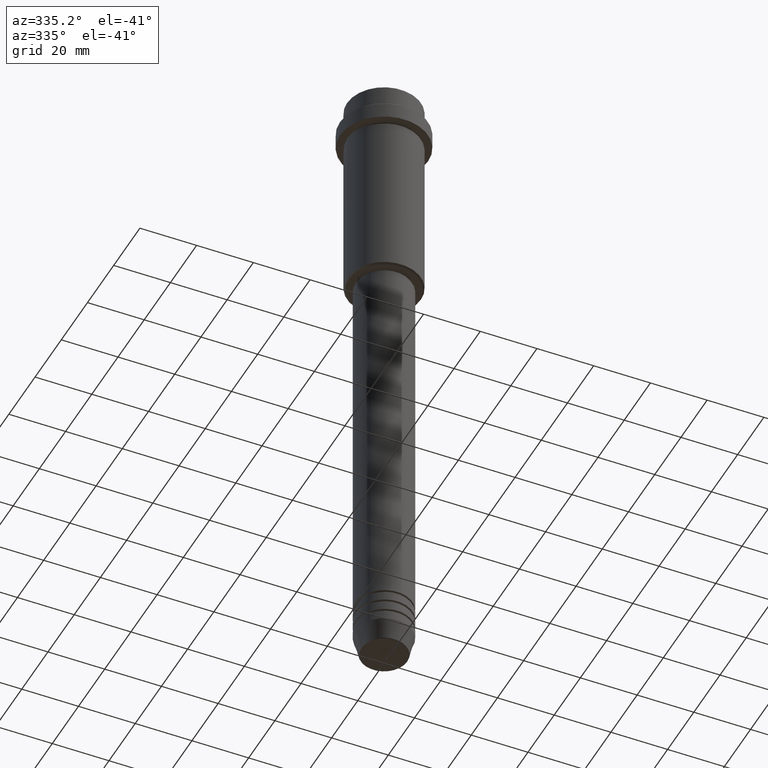
[diagram: clean part render]
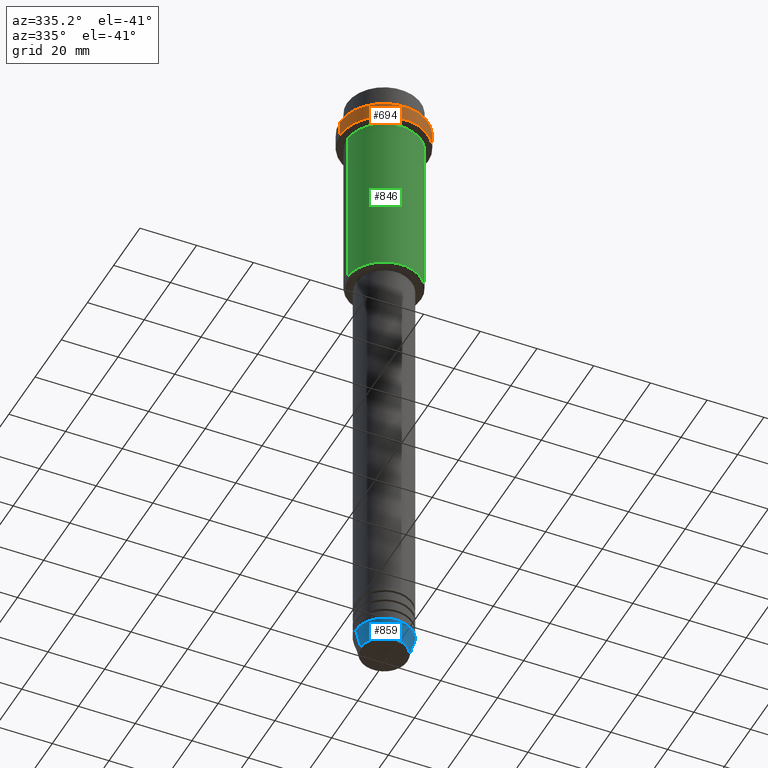
[diagram: same view with three faces highlighted in distinct colors, each labeled with its STEP entity id]
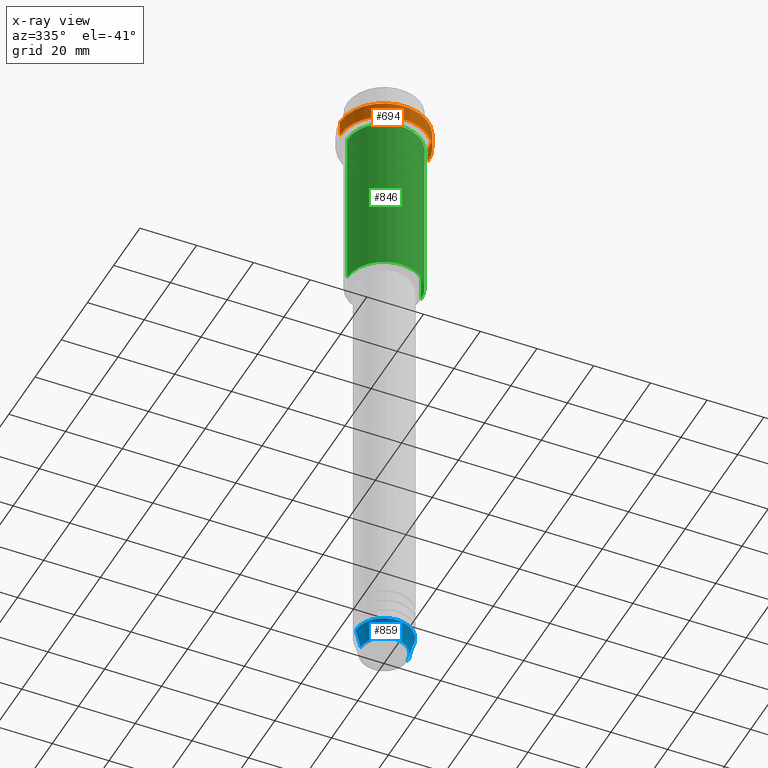
[diagram: x-ray of the same camera — body ghosted, the three highlighted faces saturated]
A machine part, auxiliary view with three faces highlighted in distinct colors.
The next image is the same camera in x-ray (body ghosted, the three faces saturated) — at least one of them is partly hidden behind the body in this view.
Their STEP definitions:

[orange] entity #694 — the highlighted cylindrical surface (partial cylindrical patch) has radius 15.5 mm, axis along (-0, -0, 1).
#1 = CARTESIAN_POINT ( 'NONE',  ( -15.50000000000000000, 1.898202538678397557E-15, -9.499999999999957367 ) ) ;
#56 = ORIENTED_EDGE ( 'NONE', *, *, #951, .T. ) ;
#149 = DIRECTION ( 'NONE',  ( -0.000000000000000000, -0.000000000000000000, 1.000000000000000000 ) ) ;
#168 = CIRCLE ( 'NONE', #808, 15.50000000000000000 ) ;
#175 = DIRECTION ( 'NONE',  ( -0.000000000000000000, -0.000000000000000000, 1.000000000000000000 ) ) ;
#194 = DIRECTION ( 'NONE',  ( 0.000000000000000000, 0.000000000000000000, -1.000000000000000000 ) ) ;
#233 = ORIENTED_EDGE ( 'NONE', *, *, #815, .T. ) ;
#283 = EDGE_CURVE ( 'NONE', #464, #623, #995, .T. ) ;
#376 = CARTESIAN_POINT ( 'NONE',  ( 15.50000000000000000, 0.000000000000000000, 0.000000000000000000 ) ) ;
#446 = CYLINDRICAL_SURFACE ( 'NONE', #756, 15.50000000000000000 ) ;
#461 = VECTOR ( 'NONE', #175, 1000.000000000000000 ) ;
#464 = VERTEX_POINT ( 'NONE', #1241 ) ;
#524 = ORIENTED_EDGE ( 'NONE', *, *, #896, .F. ) ;
#541 = CARTESIAN_POINT ( 'NONE',  ( 0.000000000000000000, 0.000000000000000000, -9.499999999999957367 ) ) ;
#564 = VERTEX_POINT ( 'NONE', #856 ) ;
#623 = VERTEX_POINT ( 'NONE', #1 ) ;
#671 = CARTESIAN_POINT ( 'NONE',  ( 0.000000000000000000, 0.000000000000000000, 0.000000000000000000 ) ) ;
#694 = ADVANCED_FACE ( 'NONE', ( #1100 ), #446, .T. ) ;
#754 = CARTESIAN_POINT ( 'NONE',  ( 0.000000000000000000, 0.000000000000000000, -15.00000000000000178 ) ) ;
#756 = AXIS2_PLACEMENT_3D ( 'NONE', #671, #1117, #867 ) ;
#808 = AXIS2_PLACEMENT_3D ( 'NONE', #754, #1199, #1021 ) ;
#815 = EDGE_CURVE ( 'NONE', #564, #1309, #168, .T. ) ;
#828 = LINE ( 'NONE', #376, #1178 ) ;
#854 = EDGE_LOOP ( 'NONE', ( #524, #233, #56, #941 ) ) ;
#856 = CARTESIAN_POINT ( 'NONE',  ( -15.50000000000000000, 1.898202538678397557E-15, -15.00000000000000178 ) ) ;
#867 = DIRECTION ( 'NONE',  ( 1.000000000000000000, 0.000000000000000000, 0.000000000000000000 ) ) ;
#896 = EDGE_CURVE ( 'NONE', #564, #623, #921, .T. ) ;
#921 = LINE ( 'NONE', #1370, #461 ) ;
#941 = ORIENTED_EDGE ( 'NONE', *, *, #283, .T. ) ;
#951 = EDGE_CURVE ( 'NONE', #1309, #464, #828, .T. ) ;
#995 = CIRCLE ( 'NONE', #1197, 15.50000000000000000 ) ;
#999 = CARTESIAN_POINT ( 'NONE',  ( 15.50000000000000000, 0.000000000000000000, -15.00000000000000178 ) ) ;
#1021 = DIRECTION ( 'NONE',  ( 1.000000000000000000, 0.000000000000000000, 0.000000000000000000 ) ) ;
#1100 = FACE_OUTER_BOUND ( 'NONE', #854, .T. ) ;
#1117 = DIRECTION ( 'NONE',  ( -0.000000000000000000, -0.000000000000000000, 1.000000000000000000 ) ) ;
#1178 = VECTOR ( 'NONE', #149, 1000.000000000000000 ) ;
#1197 = AXIS2_PLACEMENT_3D ( 'NONE', #541, #194, #1231 ) ;
#1199 = DIRECTION ( 'NONE',  ( -0.000000000000000000, -0.000000000000000000, 1.000000000000000000 ) ) ;
#1231 = DIRECTION ( 'NONE',  ( 1.000000000000000000, 0.000000000000000000, 0.000000000000000000 ) ) ;
#1241 = CARTESIAN_POINT ( 'NONE',  ( 15.50000000000000000, 0.000000000000000000, -9.499999999999957367 ) ) ;
#1309 = VERTEX_POINT ( 'NONE', #999 ) ;
#1370 = CARTESIAN_POINT ( 'NONE',  ( -15.50000000000000000, 1.898202538678397557E-15, 0.000000000000000000 ) ) ;

[blue] entity #859 — the highlighted conical surface has half-angle 15 deg.
#19 = VERTEX_POINT ( 'NONE', #767 ) ;
#24 = EDGE_LOOP ( 'NONE', ( #1134, #677, #421, #467 ) ) ;
#65 = CARTESIAN_POINT ( 'NONE',  ( 0.000000000000000000, 0.000000000000000000, -223.0000000000000284 ) ) ;
#172 = FACE_OUTER_BOUND ( 'NONE', #24, .T. ) ;
#199 = DIRECTION ( 'NONE',  ( 1.000000000000000000, 0.000000000000000000, 0.000000000000000000 ) ) ;
#251 = VERTEX_POINT ( 'NONE', #1073 ) ;
#281 = CARTESIAN_POINT ( 'NONE',  ( -10.00000000000000000, 1.224646799147353256E-15, -223.0000000000000284 ) ) ;
#361 = VERTEX_POINT ( 'NONE', #940 ) ;
#421 = ORIENTED_EDGE ( 'NONE', *, *, #1064, .T. ) ;
#449 = DIRECTION ( 'NONE',  ( 1.000000000000000000, 0.000000000000000000, 0.000000000000000000 ) ) ;
#458 = CIRCLE ( 'NONE', #1266, 10.00000000000000000 ) ;
#467 = ORIENTED_EDGE ( 'NONE', *, *, #806, .F. ) ;
#479 = CARTESIAN_POINT ( 'NONE',  ( 0.000000000000000000, 0.000000000000000000, -229.6294095225513274 ) ) ;
#500 = DIRECTION ( 'NONE',  ( -0.2588190451025205174, 3.169619151431761243E-17, 0.9659258262890684232 ) ) ;
#544 = DIRECTION ( 'NONE',  ( 0.2588190451025205174, 0.000000000000000000, 0.9659258262890684232 ) ) ;
#615 = DIRECTION ( 'NONE',  ( 1.000000000000000000, 0.000000000000000000, 0.000000000000000000 ) ) ;
#629 = CARTESIAN_POINT ( 'NONE',  ( 10.00000000000000000, 0.000000000000000000, -223.0000000000000284 ) ) ;
#646 = CONICAL_SURFACE ( 'NONE', #691, 10.00000000000000000, 0.2617993877991491303 ) ;
#672 = VECTOR ( 'NONE', #544, 1000.000000000000114 ) ;
#677 = ORIENTED_EDGE ( 'NONE', *, *, #906, .T. ) ;
#691 = AXIS2_PLACEMENT_3D ( 'NONE', #65, #776, #449 ) ;
#763 = DIRECTION ( 'NONE',  ( -0.000000000000000000, -0.000000000000000000, 1.000000000000000000 ) ) ;
#767 = CARTESIAN_POINT ( 'NONE',  ( 8.223655072137193045, 0.000000000000000000, -229.6294095225513274 ) ) ;
#772 = VERTEX_POINT ( 'NONE', #938 ) ;
#776 = DIRECTION ( 'NONE',  ( -0.000000000000000000, -0.000000000000000000, 1.000000000000000000 ) ) ;
#806 = EDGE_CURVE ( 'NONE', #251, #361, #458, .T. ) ;
#859 = ADVANCED_FACE ( 'NONE', ( #172 ), #646, .T. ) ;
#884 = AXIS2_PLACEMENT_3D ( 'NONE', #479, #1168, #615 ) ;
#906 = EDGE_CURVE ( 'NONE', #772, #19, #1116, .T. ) ;
#938 = CARTESIAN_POINT ( 'NONE',  ( -8.223655072137193045, 1.115877042642912251E-15, -229.6294095225513274 ) ) ;
#940 = CARTESIAN_POINT ( 'NONE',  ( 10.00000000000000000, 0.000000000000000000, -223.0000000000000284 ) ) ;
#988 = EDGE_CURVE ( 'NONE', #772, #251, #1032, .T. ) ;
#1032 = LINE ( 'NONE', #281, #1158 ) ;
#1064 = EDGE_CURVE ( 'NONE', #19, #361, #1174, .T. ) ;
#1073 = CARTESIAN_POINT ( 'NONE',  ( -10.00000000000000000, 1.224646799147353256E-15, -223.0000000000000284 ) ) ;
#1109 = CARTESIAN_POINT ( 'NONE',  ( 0.000000000000000000, 0.000000000000000000, -223.0000000000000284 ) ) ;
#1116 = CIRCLE ( 'NONE', #884, 8.223655072137193045 ) ;
#1134 = ORIENTED_EDGE ( 'NONE', *, *, #988, .F. ) ;
#1158 = VECTOR ( 'NONE', #500, 1000.000000000000114 ) ;
#1168 = DIRECTION ( 'NONE',  ( -0.000000000000000000, -0.000000000000000000, 1.000000000000000000 ) ) ;
#1174 = LINE ( 'NONE', #629, #672 ) ;
#1266 = AXIS2_PLACEMENT_3D ( 'NONE', #1109, #763, #199 ) ;

[green] entity #846 — the highlighted cylindrical surface (partial cylindrical patch) has radius 13 mm, axis along (-0, -0, 1).
#35 = EDGE_CURVE ( 'NONE', #431, #1065, #918, .T. ) ;
#43 = VERTEX_POINT ( 'NONE', #122 ) ;
#51 = VECTOR ( 'NONE', #583, 1000.000000000000000 ) ;
#68 = CARTESIAN_POINT ( 'NONE',  ( 13.00000000000000000, 0.000000000000000000, -16.00000000000000000 ) ) ;
#118 = VECTOR ( 'NONE', #1366, 1000.000000000000000 ) ;
#122 = CARTESIAN_POINT ( 'NONE',  ( -13.00000000000000000, 1.592040838891559095E-15, -16.00000000000000000 ) ) ;
#151 = CARTESIAN_POINT ( 'NONE',  ( -13.00000000000000000, 1.592040838891559095E-15, 0.000000000000000000 ) ) ;
#154 = EDGE_CURVE ( 'NONE', #43, #1392, #401, .T. ) ;
#156 = CYLINDRICAL_SURFACE ( 'NONE', #1247, 13.00000000000000000 ) ;
#268 = CARTESIAN_POINT ( 'NONE',  ( 0.000000000000000000, 0.000000000000000000, 0.000000000000000000 ) ) ;
#310 = ORIENTED_EDGE ( 'NONE', *, *, #154, .F. ) ;
#318 = AXIS2_PLACEMENT_3D ( 'NONE', #1094, #1415, #1003 ) ;
#401 = CIRCLE ( 'NONE', #724, 13.00000000000000000 ) ;
#410 = CARTESIAN_POINT ( 'NONE',  ( 13.00000000000000000, 0.000000000000000000, -74.50000000000004263 ) ) ;
#431 = VERTEX_POINT ( 'NONE', #534 ) ;
#481 = EDGE_CURVE ( 'NONE', #431, #43, #807, .T. ) ;
#521 = CARTESIAN_POINT ( 'NONE',  ( 0.000000000000000000, 0.000000000000000000, -16.00000000000000000 ) ) ;
#534 = CARTESIAN_POINT ( 'NONE',  ( -13.00000000000000000, 1.592040838891559095E-15, -74.50000000000004263 ) ) ;
#583 = DIRECTION ( 'NONE',  ( -0.000000000000000000, -0.000000000000000000, 1.000000000000000000 ) ) ;
#602 = DIRECTION ( 'NONE',  ( 1.000000000000000000, 0.000000000000000000, 0.000000000000000000 ) ) ;
#626 = EDGE_LOOP ( 'NONE', ( #1295, #997, #1022, #310 ) ) ;
#714 = CARTESIAN_POINT ( 'NONE',  ( 13.00000000000000000, 0.000000000000000000, 0.000000000000000000 ) ) ;
#724 = AXIS2_PLACEMENT_3D ( 'NONE', #521, #755, #1405 ) ;
#755 = DIRECTION ( 'NONE',  ( -0.000000000000000000, -0.000000000000000000, 1.000000000000000000 ) ) ;
#807 = LINE ( 'NONE', #151, #118 ) ;
#846 = ADVANCED_FACE ( 'NONE', ( #1147 ), #156, .T. ) ;
#918 = CIRCLE ( 'NONE', #318, 13.00000000000000000 ) ;
#968 = EDGE_CURVE ( 'NONE', #1065, #1392, #1250, .T. ) ;
#997 = ORIENTED_EDGE ( 'NONE', *, *, #35, .T. ) ;
#1003 = DIRECTION ( 'NONE',  ( -1.000000000000000000, 0.000000000000000000, 0.000000000000000000 ) ) ;
#1022 = ORIENTED_EDGE ( 'NONE', *, *, #968, .T. ) ;
#1065 = VERTEX_POINT ( 'NONE', #410 ) ;
#1094 = CARTESIAN_POINT ( 'NONE',  ( 0.000000000000000000, 0.000000000000000000, -74.50000000000004263 ) ) ;
#1147 = FACE_OUTER_BOUND ( 'NONE', #626, .T. ) ;
#1155 = DIRECTION ( 'NONE',  ( -0.000000000000000000, -0.000000000000000000, 1.000000000000000000 ) ) ;
#1247 = AXIS2_PLACEMENT_3D ( 'NONE', #268, #1155, #602 ) ;
#1250 = LINE ( 'NONE', #714, #51 ) ;
#1295 = ORIENTED_EDGE ( 'NONE', *, *, #481, .F. ) ;
#1366 = DIRECTION ( 'NONE',  ( -0.000000000000000000, -0.000000000000000000, 1.000000000000000000 ) ) ;
#1392 = VERTEX_POINT ( 'NONE', #68 ) ;
#1405 = DIRECTION ( 'NONE',  ( 1.000000000000000000, 0.000000000000000000, 0.000000000000000000 ) ) ;
#1415 = DIRECTION ( 'NONE',  ( -0.000000000000000000, -0.000000000000000000, 1.000000000000000000 ) ) ;